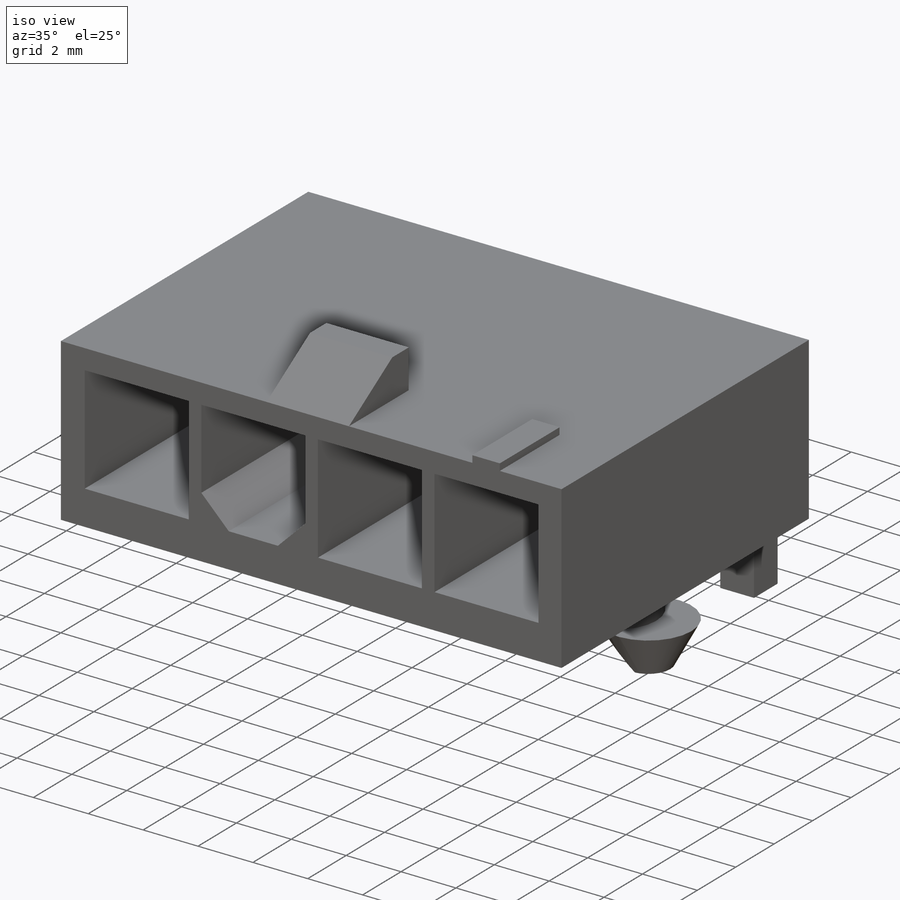
[diagram: iso view]
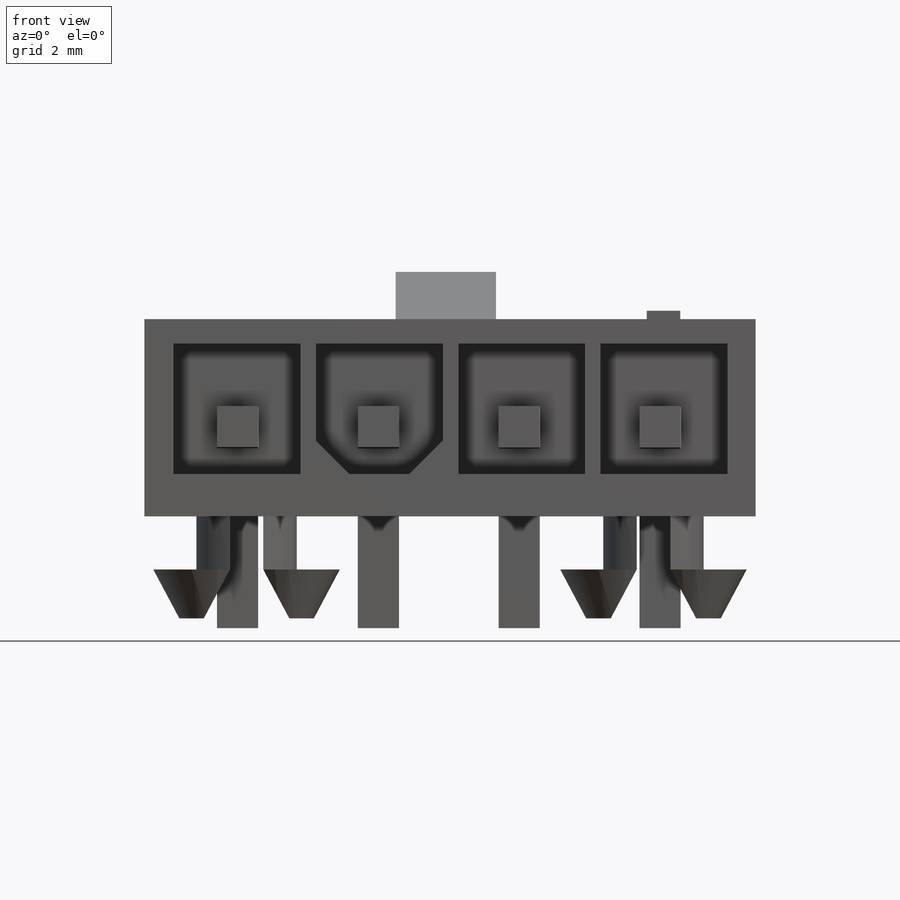
[diagram: front view]
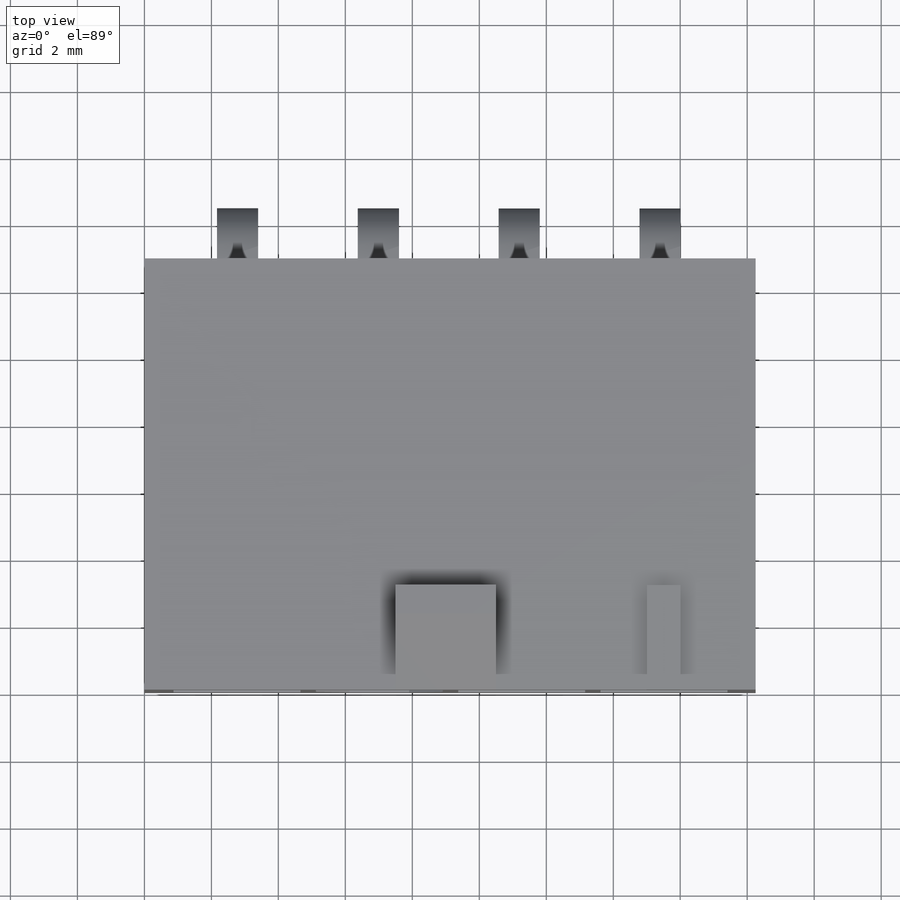
[diagram: top view]
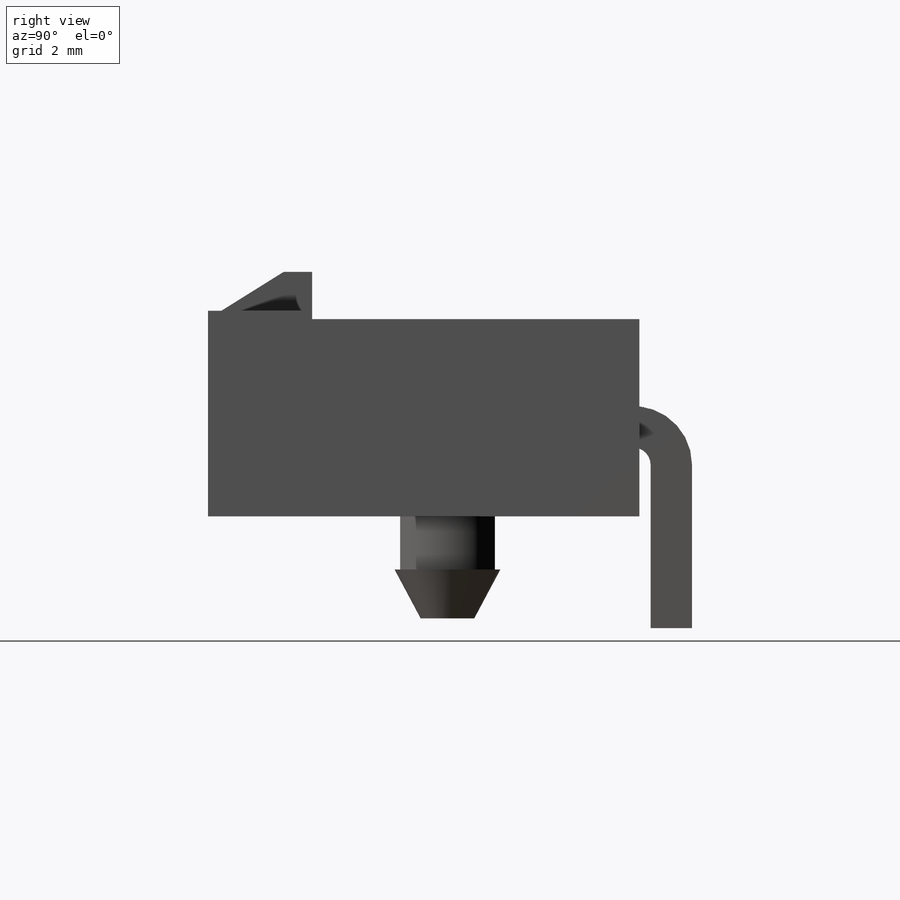
[diagram: right view]
SOLIDWORKS PART (.sldprt)
format: sldprt  version: not decoded by parser v0  size: 393,216 bytes
history: native  units: mm
features: sketch x10, extrude x5, cut_extrude x3, sweep x2, material x1, plane x1 (+11 scaffold rows collapsed)
feature tree (33):
  scaffold x11  (default folders/planes/origin — collapsed)
  material  "Material <not specified>"
  sketch  "Sketch1"
  extrude  "Boss-Extrude1"  Depth=5.89mm
  sketch  "Sketch2"  dims[D1=3.9mm]
  cut_extrude  "Cut-Extrude1"  Depth=9mm
  sketch  "Sketch3"  dims[D1=3.11mm]
  extrude  "Boss-Extrude2"  Depth=1.41mm
  sketch  "Sketch4"
  cut_extrude  "Cut-Extrude2"  Depth=3mm
  sketch  "Sketch5"  dims[c1.D1=1.23mm c1.D2=1.23mm c2.D1=4.0]
  sketch  "Sketch7"  dims[D1=90.0deg]
  plane  "Plane1"  Offset=3.3375mm
  sketch  "Sketch8"  dims[c1.D1=1.23mm c1.D2=1.23mm c2.D1=4.0]
  cut_extrude  "Cut-Extrude3"  Depth=4mm
  sweep  "Sweep2"
  sketch  "Sketch9"
  extrude  "Boss-Extrude3"  Depth=0.25mm
  sketch  "Sketch10"  dims[c1.D1=0.5mm c2.D1=~124.928045deg]
  sweep  "Measure2"
  extrude  "Boss-Extrude5"  Depth=1.5875mm
  sketch  "Sketch12"  dims[D1=2.0mm]
  extrude  "Boss-Extrude6"  Depth=1.46mm
decode coverage: 15 of 20 modeling features carry decoded parameters
note: ~ marks probable driven/reference dimensions
note: suppression state not decoded; provenance and decode notes live in map.json
